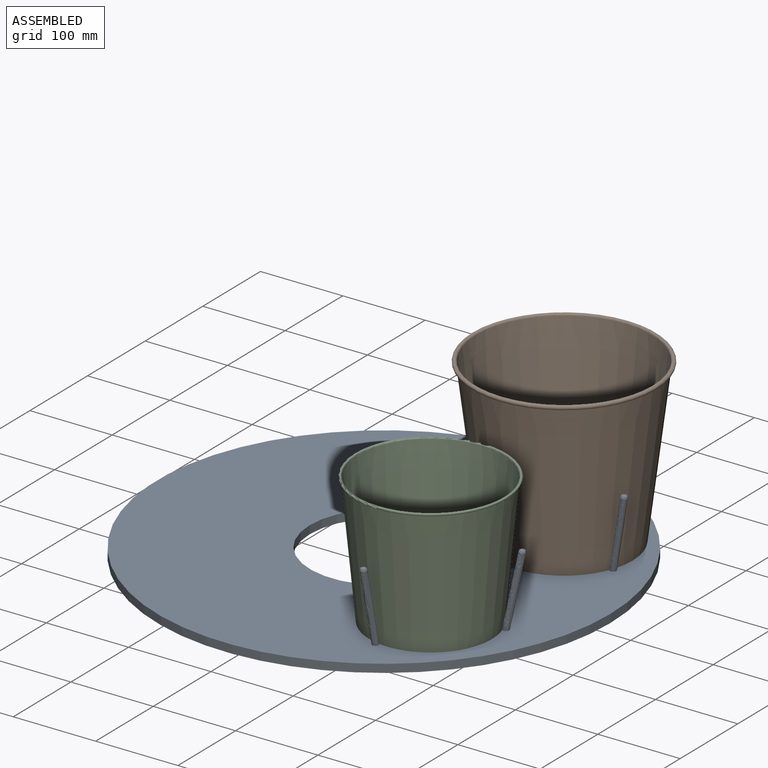
[diagram: assembled view]
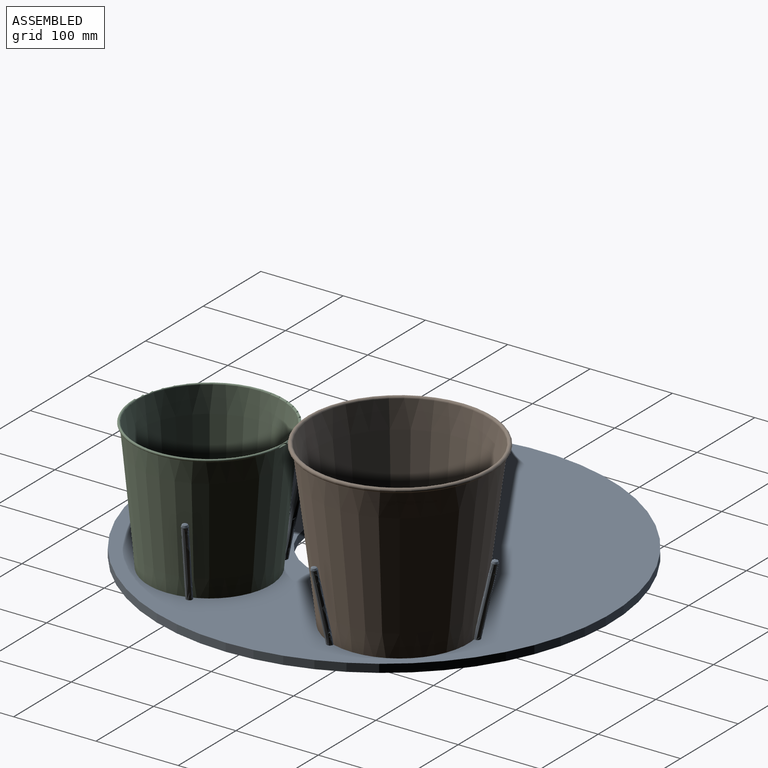
[diagram: assembled view, second angle]
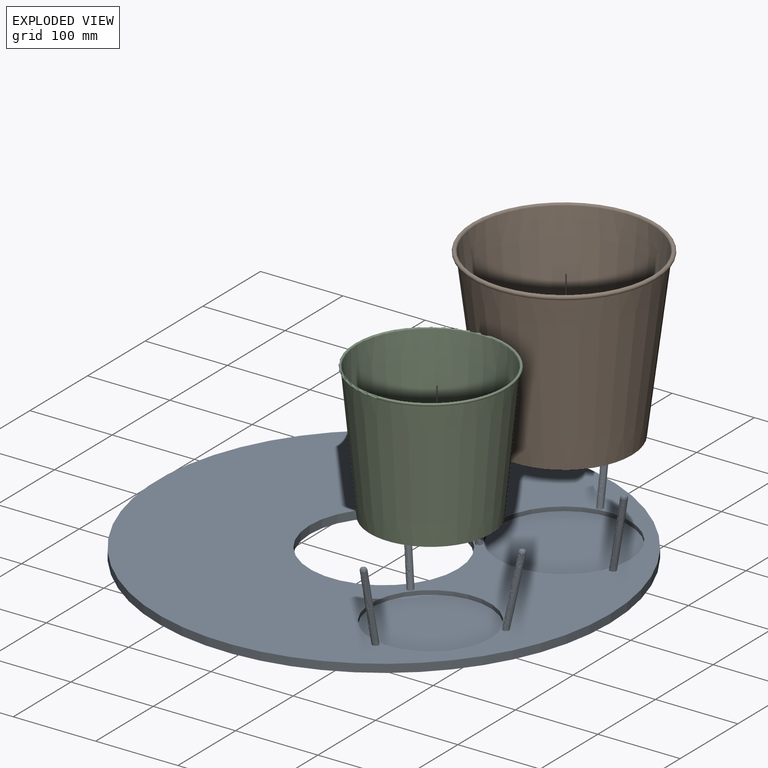
[diagram: exploded view]
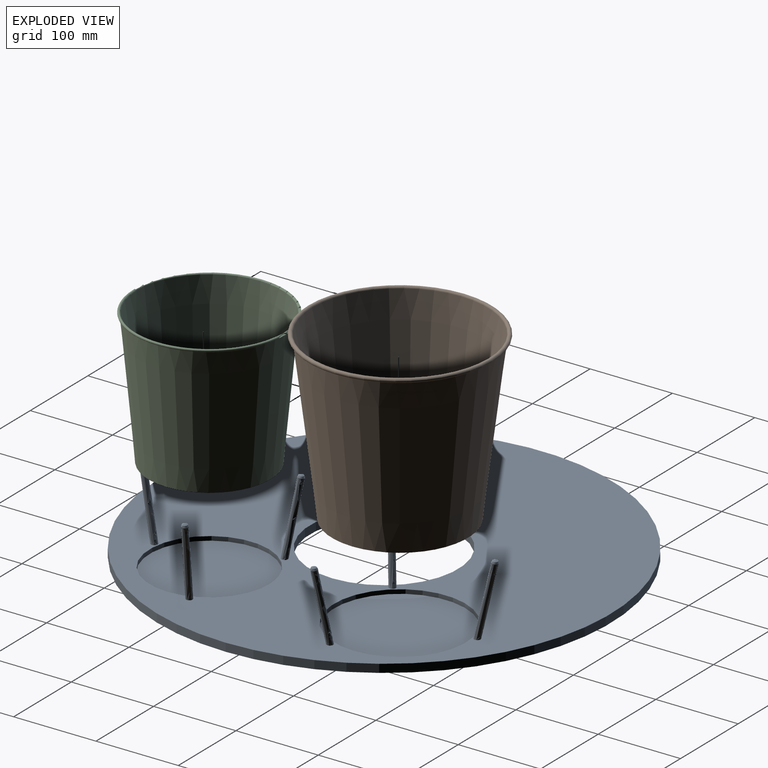
[diagram: exploded view, second angle]
ASSEMBLY  parts=3 mates=2
PART A: 26 faces, bbox 551.1x551.1x101.1 mm
  f0: cylinder r=90mm len=180mm, axis (0,0,-1), area 5654.9mm2, adj f2,f3
  f1: cylinder r=275mm len=550mm, axis (0,0,-1), area 17278.8mm2, adj f2,f3
  f2: plane 551.11x551.11mm, normal (0,0,1), area 175215.3mm2, adj f0,f1,f5,f7,f9,f11,f13,f15
  f3: plane 550x550mm, normal (0,0,-1), area 212136mm2, adj f0,f1
  f4: plane 1.99x1.9mm, normal (0,0,1), area 3mm2, adj f21
  f5: bspline ~87.57x23.96mm, area 2211.3mm2, adj f2,f21
  f6: plane 1.95x1.94mm, normal (0,0,1), area 3mm2, adj f20
  f7: bspline ~90x27.25mm, area 2211.3mm2, adj f2,f20
  f8: plane 2x1.89mm, normal (0,0,1), area 3mm2, adj f19
  f9: bspline ~90x33.23mm, area 2211.3mm2, adj f2,f19
  f10: plane 1.98x1.87mm, normal (0,0,1), area 2.9mm2, adj f18
  f11: bspline ~87.65x26.26mm, area 2217.6mm2, adj f2,f18
  f12: plane 2x1.86mm, normal (0,0,1), area 2.9mm2, adj f17
  f13: bspline ~87.65x27.07mm, area 2217.5mm2, adj f2,f17
  f14: plane 1.94x1.92mm, normal (0,0,1), area 2.9mm2, adj f16
  f15: bspline ~87.65x22.88mm, area 2217.6mm2, adj f2,f16
  f16: bspline ~8.47x8.42mm, area 85.1mm2, adj f14,f15
  f17: bspline ~8.53x8.18mm, area 85.1mm2, adj f12,f13
  f18: bspline ~8.51x8.27mm, area 85.1mm2, adj f10,f11
  f19: bspline ~8.48x8.15mm, area 85.3mm2, adj f8,f9
  f20: bspline ~8.42x8.36mm, area 85.3mm2, adj f6,f7
  f21: bspline ~8.47x8.24mm, area 85.3mm2, adj f4,f5
  f22: cylinder r=80mm len=160mm, axis (0,0,1), area 2513.3mm2, adj f2,f23
  f23: plane 160x160mm, normal (0,0,1), area 20106.2mm2, adj f22
  f24: cylinder r=72.5mm len=145mm, axis (0,0,1), area 2277.7mm2, adj f2,f25
  f25: plane 145x145mm, normal (0,0,1), area 16513mm2, adj f24
PART B: 9 faces, bbox 242x242x202 mm
  f0: cone r=81.56mm half-angle=7.1deg, axis (0,0,1), area 4091.9mm2, adj f2,f7
  f1: cone r=82.55mm half-angle=7.1deg, axis (0,0,1), area 121658.7mm2, adj f2,f6
  f2: cone r=82.55mm half-angle=82.9deg, axis (0,0,-1), area 515.6mm2, adj f0,f1
  f3: cone r=109.59mm half-angle=12.3deg, axis (0,0,-1), area 689.3mm2, adj f4,f6
  f4: torus R=109.27mm, axis (0,0,1), area 7548.6mm2, adj f3,f5
  f5: cone r=81.56mm half-angle=7.1deg, axis (0,0,1), area 115775.2mm2, adj f4,f8
  f6: torus R=109.27mm, axis (0,0,1), area 4518.8mm2, adj f1,f3
  f7: plane 165.08x165.08mm, normal (0,0,-1), area 21404.4mm2, adj f0
  f8: plane 165.33x165.33mm, normal (0,0,1), area 21469.2mm2, adj f5
PART C: 9 faces, bbox 198.6x198.6x165.2 mm
  f0: cone r=73.03mm half-angle=5.5deg, axis (0,0,1), area 78973.7mm2, adj f5,f7
  f1: cone r=73.03mm half-angle=84.5deg, axis (0,0,-1), area 462mm2, adj f4,f6
  f2: cone r=90.63mm half-angle=14deg, axis (0,0,-1), area 568.7mm2, adj f3,f5
  f3: torus R=90.26mm, axis (0,0,-1), area 1241.6mm2, adj f2,f4
  f4: cone r=74.02mm half-angle=5.5deg, axis (0,0,1), area 84642.3mm2, adj f1,f3
  f5: torus R=90.26mm, axis (0,0,-1), area 3734.8mm2, adj f0,f2
  f6: cone r=73.03mm half-angle=5.5deg, axis (0,0,1), area 4173.1mm2, adj f1,f8
  f7: plane 147.97x147.97mm, normal (0,0,1), area 17197.1mm2, adj f0
  f8: plane 147.78x147.78mm, normal (0,0,-1), area 17152.4mm2, adj f6
PLACE A at identity
PLACE B t=(137.89,115.7,5)mm
PLACE C t=(137.89,-115.7,5.1)mm
MATE fastened B.f0 <-> A.f22  axis (0,0,1) through (137.89,115.7,5)mm
MATE fastened C.f0 <-> A.f24  axis (0,0,1) through (137.89,-115.7,5)mm
